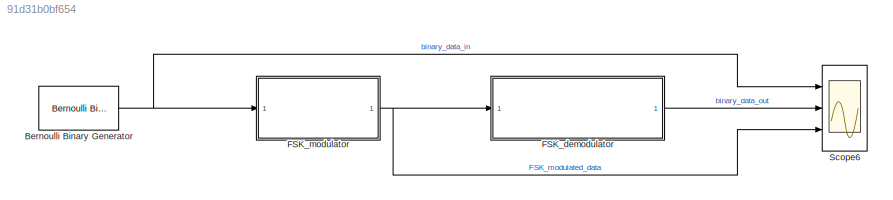
MODEL slx_91d31b0bf654
KIND model
CONFIG AbsTol = auto
CONFIG EnableMultiTasking = off
CONFIG FixedStep = auto
CONFIG MaxStep = auto
CONFIG MinStep = auto
CONFIG RelTol = 1e-3
CONFIG SampleTimeConstraint = Unconstrained
CONFIG SolverName = VariableStepAuto
CONFIG StartTime = 0.0
CONFIG StopTime = 0.05
BLOCK [Reference] Bernoulli Binary Generator  REF=commrandsrc3/Bernoulli Binary
Generator
  Ports = [0, 1]
  SourceBlock = commrandsrc3/Bernoulli Binary\nGenerator
  SourceProductBaseCode = CM
  SourceType = Bernoulli Binary Generator
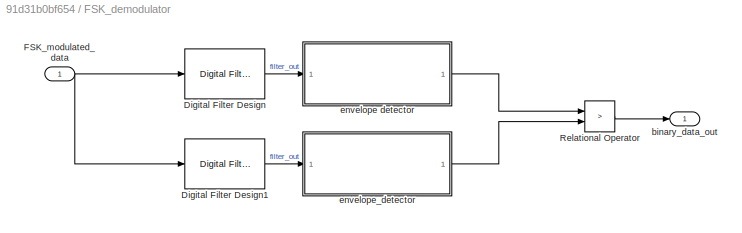
BLOCK [SubSystem] FSK_demodulator
  Ports = [1, 1]
  RequestExecContextInheritance = off
BLOCK [Reference] FSK_demodulator/Digital Filter Design  REF=dsparch4/Digital
Filter Design
  Ports = [1, 1]
  SourceBlock = dsparch4/Digital\nFilter Design
  SourceProductBaseCode = DS
  SourceType = Digital Filter Design
  UserDataPersistent = on
BLOCK [Reference] FSK_demodulator/Digital Filter Design1  REF=dsparch4/Digital
Filter Design
  Ports = [1, 1]
  SourceBlock = dsparch4/Digital\nFilter Design
  SourceProductBaseCode = DS
  SourceType = Digital Filter Design
  UserDataPersistent = on
BLOCK [Inport] FSK_demodulator/FSK_modulated_data
BLOCK [RelationalOperator] FSK_demodulator/Relational Operator
  InputSameDT = off
  Operator = >
  OutDataTypeStr = boolean
  Ports = [2, 1]
  RndMeth = Simplest
BLOCK [Outport] FSK_demodulator/binary_data_out
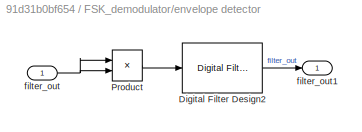
BLOCK [SubSystem] FSK_demodulator/envelope detector
  Ports = [1, 1]
  RequestExecContextInheritance = off
BLOCK [Reference] FSK_demodulator/envelope detector/Digital Filter Design2  REF=dsparch4/Digital
Filter Design
  Ports = [1, 1]
  SourceBlock = dsparch4/Digital\nFilter Design
  SourceProductBaseCode = DS
  SourceType = Digital Filter Design
  UserDataPersistent = on
BLOCK [Product] FSK_demodulator/envelope detector/Product
  Ports = [2, 1]
BLOCK [Inport] FSK_demodulator/envelope detector/filter_out
BLOCK [Outport] FSK_demodulator/envelope detector/filter_out1
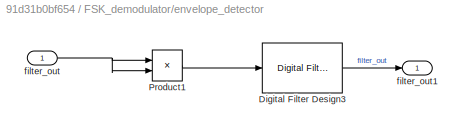
BLOCK [SubSystem] FSK_demodulator/envelope_detector
  Ports = [1, 1]
  RequestExecContextInheritance = off
BLOCK [Reference] FSK_demodulator/envelope_detector/Digital Filter Design3  REF=dsparch4/Digital
Filter Design
  Ports = [1, 1]
  SourceBlock = dsparch4/Digital\nFilter Design
  SourceProductBaseCode = DS
  SourceType = Digital Filter Design
  UserDataPersistent = on
BLOCK [Product] FSK_demodulator/envelope_detector/Product1
  Ports = [2, 1]
BLOCK [Inport] FSK_demodulator/envelope_detector/filter_out
BLOCK [Outport] FSK_demodulator/envelope_detector/filter_out1
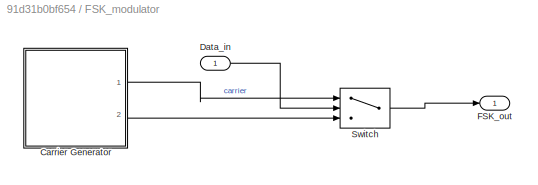
BLOCK [SubSystem] FSK_modulator
  Ports = [1, 1]
  RequestExecContextInheritance = off
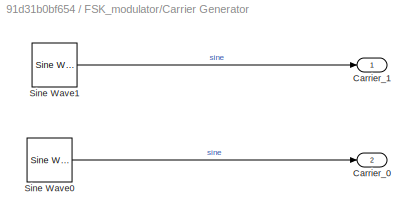
BLOCK [SubSystem] FSK_modulator/Carrier Generator 
  Ports = [0, 2]
  RequestExecContextInheritance = off
BLOCK [Outport] FSK_modulator/Carrier Generator /Carrier_0
  Port = 2
  VectorParamsAs1DForOutWhenUnconnected = off
BLOCK [Outport] FSK_modulator/Carrier Generator /Carrier_1
  VectorParamsAs1DForOutWhenUnconnected = off
BLOCK [Reference] FSK_modulator/Carrier Generator /Sine Wave0  REF=dspsrcs4/Sine Wave
  Ports = [0, 1]
  SourceBlock = dspsrcs4/Sine Wave
  SourceProductBaseCode = DS
  SourceType = Sine Wave
BLOCK [Reference] FSK_modulator/Carrier Generator /Sine Wave1  REF=dspsrcs4/Sine Wave
  Ports = [0, 1]
  SourceBlock = dspsrcs4/Sine Wave
  SourceProductBaseCode = DS
  SourceType = Sine Wave
BLOCK [Inport] FSK_modulator/Data_in
BLOCK [Outport] FSK_modulator/FSK_out
BLOCK [Switch] FSK_modulator/Switch
  Criteria = u2 > Threshold
  InputSameDT = off
  SaturateOnIntegerOverflow = off
  Threshold = 0.5
BLOCK [Scope] Scope6
  Floating = off
  NumInputPorts = 3
  Ports = [3]
  ScopeSpecificationString = Simulink.scopes.TimeScopeBlockCfg('CurrentConfiguration', extmgr.ConfigurationSet(extmgr.Configuration('Core','General UI',true),extmgr.Configuration('Core','Source UI',true),extmgr.Configuration('Sources','WiredSimulink',true,'DataLoggingVariableName','ScopeData7'),extmgr.Configuration('Visuals','Time Domain',true,'SerializedDisplays',{struct('MinYLimReal','-0.125','MaxYLimReal','1.125','YLabelRe...<+2747ch>
NET Bernoulli Binary Generator:1 -> FSK_modulator:1, Scope6:1
LINE FSK_demodulator/Digital Filter Design1:1 -> FSK_demodulator/envelope_detector:1
LINE FSK_demodulator/Digital Filter Design:1 -> FSK_demodulator/envelope detector:1
NET FSK_demodulator/FSK_modulated_data:1 -> FSK_demodulator/Digital Filter Design1:1, FSK_demodulator/Digital Filter Design:1
LINE FSK_demodulator/Relational Operator:1 -> FSK_demodulator/binary_data_out:1
LINE FSK_demodulator/envelope detector/Digital Filter Design2:1 -> FSK_demodulator/envelope detector/filter_out1:1
LINE FSK_demodulator/envelope detector/Product:1 -> FSK_demodulator/envelope detector/Digital Filter Design2:1
NET FSK_demodulator/envelope detector/filter_out:1 -> FSK_demodulator/envelope detector/Product:1, FSK_demodulator/envelope detector/Product:2
LINE FSK_demodulator/envelope detector:1 -> FSK_demodulator/Relational Operator:1
LINE FSK_demodulator/envelope_detector/Digital Filter Design3:1 -> FSK_demodulator/envelope_detector/filter_out1:1
LINE FSK_demodulator/envelope_detector/Product1:1 -> FSK_demodulator/envelope_detector/Digital Filter Design3:1
NET FSK_demodulator/envelope_detector/filter_out:1 -> FSK_demodulator/envelope_detector/Product1:1, FSK_demodulator/envelope_detector/Product1:2
LINE FSK_demodulator/envelope_detector:1 -> FSK_demodulator/Relational Operator:2
LINE FSK_demodulator:1 -> Scope6:2
LINE FSK_modulator/Carrier Generator /Sine Wave0:1 -> FSK_modulator/Carrier Generator /Carrier_0:1
LINE FSK_modulator/Carrier Generator /Sine Wave1:1 -> FSK_modulator/Carrier Generator /Carrier_1:1
LINE FSK_modulator/Carrier Generator :1 -> FSK_modulator/Switch:1
LINE FSK_modulator/Carrier Generator :2 -> FSK_modulator/Switch:3
LINE FSK_modulator/Data_in:1 -> FSK_modulator/Switch:2
LINE FSK_modulator/Switch:1 -> FSK_modulator/FSK_out:1
NET FSK_modulator:1 -> FSK_demodulator:1, Scope6:3
note: NET lines group one-source signal fan-out (src -> all destinations, sorted); 1:1 wires keep LINE
